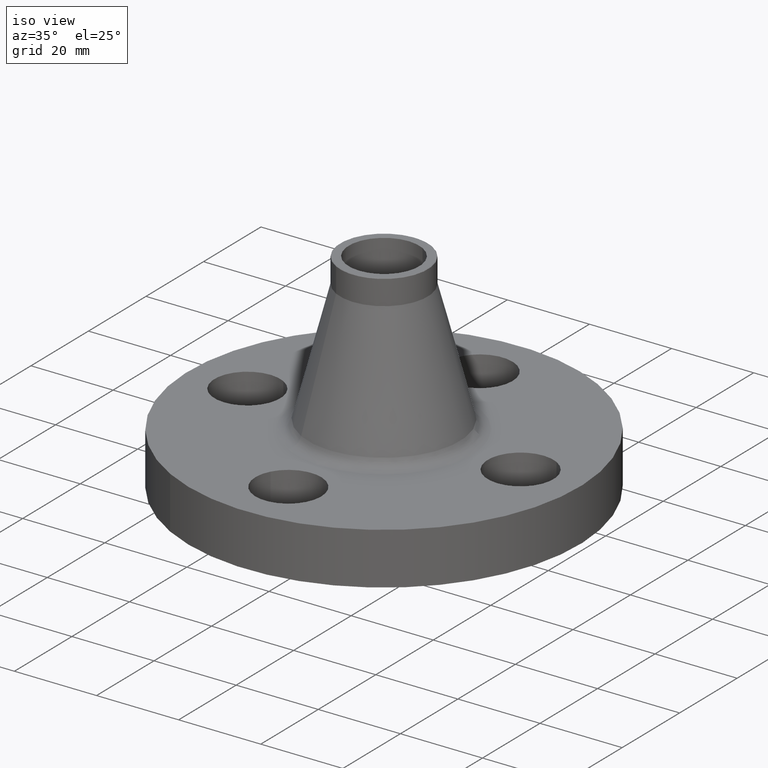
[diagram: clean part render]
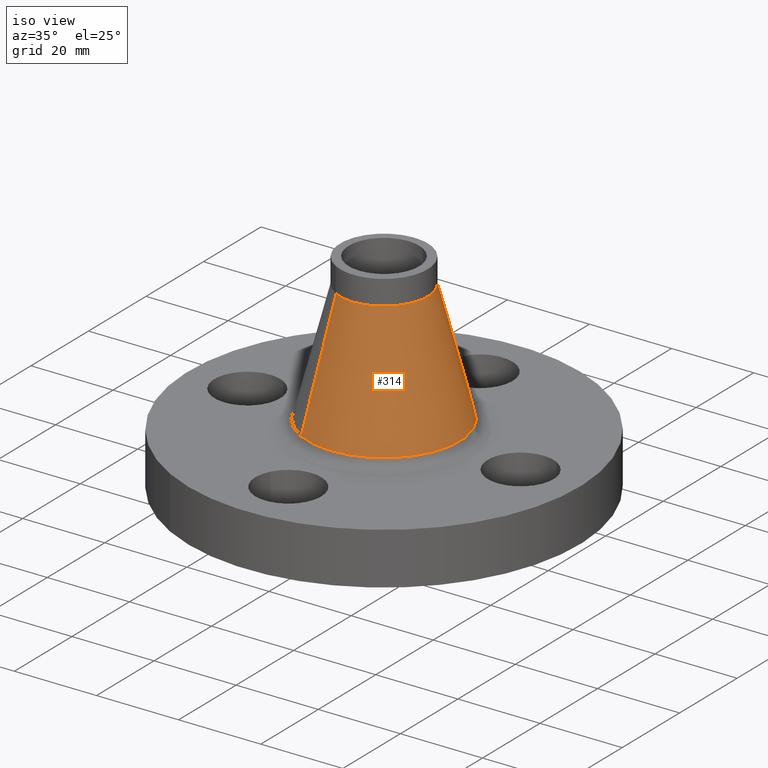
[diagram: same view with one face highlighted and labeled with its STEP entity id]
A machine part, iso view. The second image highlights one B-rep face of the part: STEP entity #314.
In plain terms, the highlighted conical surface has half-angle 14.671 deg.
Its self-contained STEP definition (entity closure, byte-faithful):
#250=AXIS2_PLACEMENT_3D('Circle Axis2P3D',#248,#249,$) ;
#287=AXIS2_PLACEMENT_3D('Cone Axis2P3D',#284,#285,#286) ;
#298=AXIS2_PLACEMENT_3D('Circle Axis2P3D',#296,#297,$) ;
#245=CARTESIAN_POINT('Vertex',(0.348322139267,0.637599399129,0.589608403713)) ;
#248=CARTESIAN_POINT('Axis2P3D Location',(0.,0.,0.589608403713)) ;
#252=CARTESIAN_POINT('Vertex',(-0.348322139267,-0.637599399129,0.589608403713)) ;
#284=CARTESIAN_POINT('Axis2P3D Location',(0.,0.,1.76051083544)) ;
#289=CARTESIAN_POINT('Line Origine',(0.274840432741,0.503092037562,1.17505961958)) ;
#293=CARTESIAN_POINT('Vertex',(0.201358726215,0.368584675995,1.76051083544)) ;
#296=CARTESIAN_POINT('Axis2P3D Location',(0.,0.,1.76051083544)) ;
#300=CARTESIAN_POINT('Vertex',(-0.201358726215,-0.368584675995,1.76051083544)) ;
#303=CARTESIAN_POINT('Line Origine',(-0.274840432741,-0.503092037562,1.17505961958)) ;
#249=DIRECTION('Axis2P3D Direction',(0.,0.,-0.0393700787402)) ;
#285=DIRECTION('Axis2P3D Direction',(0.,0.,-0.0393700787402)) ;
#286=DIRECTION('Axis2P3D XDirection',(-0.0188750212049,-0.0345504945626,0.)) ;
#290=DIRECTION('Vector Direction',(0.00478035020341,0.00875037235283,-0.0380865112031)) ;
#297=DIRECTION('Axis2P3D Direction',(0.,0.,-0.0393700787402)) ;
#304=DIRECTION('Vector Direction',(-0.00478035020341,-0.00875037235283,-0.0380865112031)) ;
#291=VECTOR('Line Direction',#290,0.0393700787402) ;
#305=VECTOR('Line Direction',#304,0.0393700787402) ;
#309=ORIENTED_EDGE('',*,*,#254,.F.) ;
#310=ORIENTED_EDGE('',*,*,#295,.T.) ;
#311=ORIENTED_EDGE('',*,*,#302,.T.) ;
#312=ORIENTED_EDGE('',*,*,#307,.F.) ;
#314=ADVANCED_FACE('PartBody',(#313),#288,.T.) ;
#251=CIRCLE('generated circle',#250,0.726540643373) ;
#299=CIRCLE('generated circle',#298,0.420000000002) ;
#288=CONICAL_SURFACE('Cone',#287,0.420000000002,0.256052053501) ;
#254=EDGE_CURVE('',#246,#253,#251,.T.) ;
#295=EDGE_CURVE('',#246,#294,#292,.F.) ;
#302=EDGE_CURVE('',#294,#301,#299,.T.) ;
#307=EDGE_CURVE('',#253,#301,#306,.F.) ;
#308=EDGE_LOOP('',(#309,#310,#311,#312)) ;
#313=FACE_OUTER_BOUND('',#308,.T.) ;
#292=LINE('Line',#289,#291) ;
#306=LINE('Line',#303,#305) ;
#246=VERTEX_POINT('',#245) ;
#253=VERTEX_POINT('',#252) ;
#294=VERTEX_POINT('',#293) ;
#301=VERTEX_POINT('',#300) ;